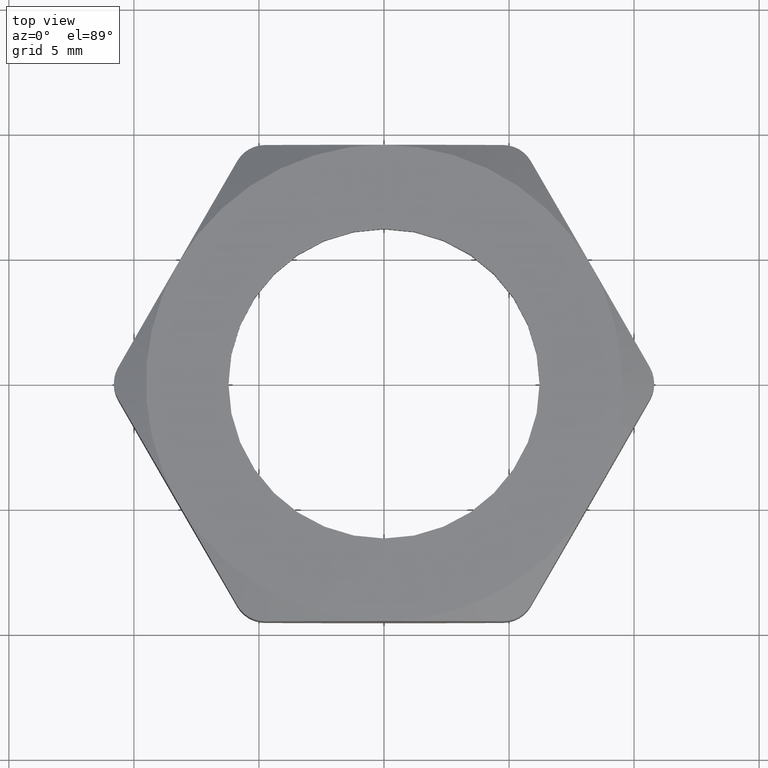
[diagram: clean part render]
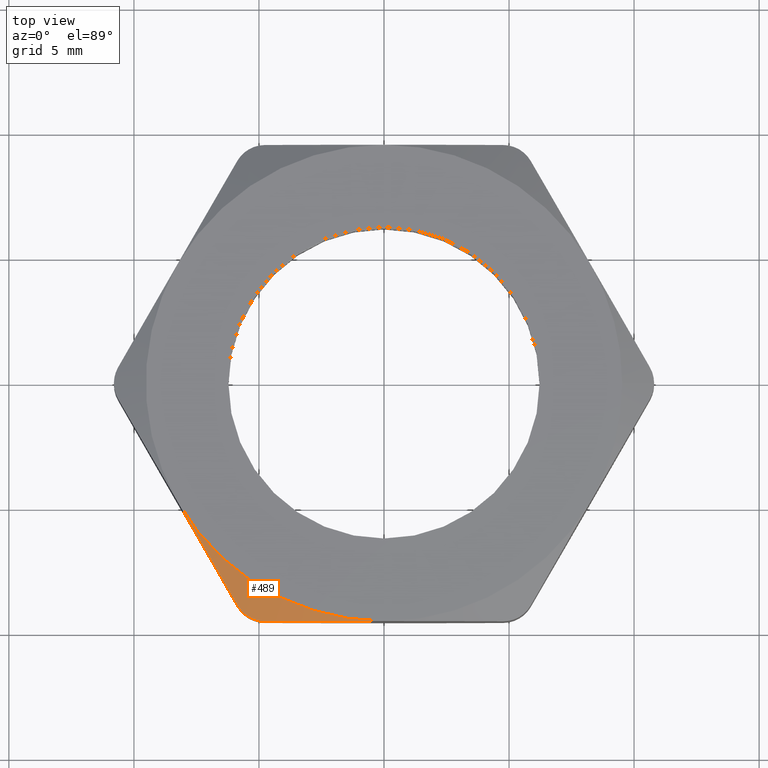
[diagram: same view with one face highlighted and labeled with its STEP entity id]
A machine part, top view. The second image highlights one B-rep face of the part: STEP entity #489.
In plain terms, the highlighted conical surface has half-angle 60 deg.
Its self-contained STEP definition (entity closure, byte-faithful):
#489 = ADVANCED_FACE ( 'NONE', ( #1753 ), #1752, .T. ) ;
#490 = EDGE_LOOP ( 'NONE', ( #523, #524, #526, #527 ) ) ;
#523 = ORIENTED_EDGE ( 'NONE', *, *, #568, .T. ) ;
#524 = ORIENTED_EDGE ( 'NONE', *, *, #525, .T. ) ;
#525 = EDGE_CURVE ( 'NONE', #584, #557, #1792, .T. ) ;
#526 = ORIENTED_EDGE ( 'NONE', *, *, #556, .T. ) ;
#527 = ORIENTED_EDGE ( 'NONE', *, *, #546, .F. ) ;
#546 = EDGE_CURVE ( 'NONE', #585, #561, #1863, .T. ) ;
#556 = EDGE_CURVE ( 'NONE', #557, #561, #1896, .T. ) ;
#557 = VERTEX_POINT ( 'NONE', #1895 ) ;
#561 = VERTEX_POINT ( 'NONE', #1886 ) ;
#568 = EDGE_CURVE ( 'NONE', #585, #584, #1923, .T. ) ;
#584 = VERTEX_POINT ( 'NONE', #1929 ) ;
#585 = VERTEX_POINT ( 'NONE', #1928 ) ;
#1310 = CARTESIAN_POINT ( 'NONE',  ( -0.2287868189352707500, -0.3537296055020498500, 0.1732964214377347200 ) ) ;
#1528 = CARTESIAN_POINT ( 'NONE',  ( -0.2261771511668514700, -0.3571555960096042300, 0.1724448371212607400 ) ) ;
#1553 = CARTESIAN_POINT ( 'NONE',  ( -0.2164802531927082500, -0.3660790922801531200, 0.1709740837146793100 ) ) ;
#1554 = CARTESIAN_POINT ( 'NONE',  ( -0.2199995032653191700, -0.3633662779848138600, 0.1712740274009819700 ) ) ;
#1555 = CARTESIAN_POINT ( 'NONE',  ( -0.1963125445148797300, -0.3744339278849128600, 0.1724288769662067600 ) ) ;
#1556 = CARTESIAN_POINT ( 'NONE',  ( -0.2088710267960136600, -0.3704809104968519500, 0.1709702763353529700 ) ) ;
#1557 = CARTESIAN_POINT ( 'NONE',  ( -0.2047242654336723400, -0.3721914671482999300, 0.1712713809660511300 ) ) ;
#1558 = CARTESIAN_POINT ( 'NONE',  ( -0.1876388374865758400, -0.3749999999999996700, 0.1744090335072245600 ) ) ;
#1559 = CARTESIAN_POINT ( 'NONE',  ( -0.1919466985765596300, -0.3750000000000022800, 0.1732960898150893400 ) ) ;
#1736 = DIRECTION ( 'NONE',  ( 1.000000000000000000, 0.0000000000000000000, 0.0000000000000000000 ) ) ;
#1737 = DIRECTION ( 'NONE',  ( 0.0000000000000000000, 0.0000000000000000000, -1.000000000000000000 ) ) ;
#1749 = AXIS2_PLACEMENT_3D ( 'NONE', #1750, #1737, #1736 ) ;
#1750 = CARTESIAN_POINT ( 'NONE',  ( 0.0000000000000000000, 0.0000000000000000000, 0.2000000000000000100 ) ) ;
#1752 = CONICAL_SURFACE ( 'NONE', #1749, 0.3749999999999999400, 1.047197551196600100 ) ;
#1753 = FACE_OUTER_BOUND ( 'NONE', #490, .T. ) ;
#1788 = CARTESIAN_POINT ( 'NONE',  ( -0.2309401076758505800, -0.3499999999999997000, 0.1744090335072108500 ) ) ;
#1792 = B_SPLINE_CURVE_WITH_KNOTS ( 'NONE', 3,
 ( #1788, #1310, #1528, #1554, #1553, #1556, #1557, #1555, #1559, #1558 ),
 .UNSPECIFIED., .F., .F.,
 ( 4, 2, 2, 2, 4 ),
 ( 0.0000000000000000000, 0.0003344051723307278900, 0.0006688103446614557800, 0.001003215516992183700, 0.001337620689322911600 ),
 .UNSPECIFIED. ) ;
#1859 = DIRECTION ( 'NONE',  ( 1.000000000000000000, 0.0000000000000000000, 0.0000000000000000000 ) ) ;
#1860 = DIRECTION ( 'NONE',  ( 0.0000000000000000000, 0.0000000000000000000, 1.000000000000000000 ) ) ;
#1861 = CARTESIAN_POINT ( 'NONE',  ( 0.0000000000000000000, 0.0000000000000000000, 0.2000000000000000100 ) ) ;
#1862 = AXIS2_PLACEMENT_3D ( 'NONE', #1861, #1860, #1859 ) ;
#1863 = CIRCLE ( 'NONE', #1862, 0.3749999999999999400 ) ;
#1886 = CARTESIAN_POINT ( 'NONE',  ( 0.0000000000000000000, -0.3749999999999996700, 0.2000000000000000100 ) ) ;
#1887 = CARTESIAN_POINT ( 'NONE',  ( 0.0000000000000000000, -0.3749999999999996700, 0.2000000000000000100 ) ) ;
#1888 = CARTESIAN_POINT ( 'NONE',  ( -0.03164395997495458200, -0.3749999999999997800, 0.2000000000000002300 ) ) ;
#1889 = CARTESIAN_POINT ( 'NONE',  ( -0.06308929749123604000, -0.3749999999999998300, 0.1976566015216269800 ) ) ;
#1890 = CARTESIAN_POINT ( 'NONE',  ( -0.1099951275432414800, -0.3749999999999997800, 0.1910482817949269700 ) ) ;
#1891 = CARTESIAN_POINT ( 'NONE',  ( -0.1255872119684755300, -0.3749999999999997800, 0.1883359152561951100 ) ) ;
#1892 = CARTESIAN_POINT ( 'NONE',  ( -0.1566949507369402000, -0.3749999999999996700, 0.1820094405576402300 ) ) ;
#1893 = CARTESIAN_POINT ( 'NONE',  ( -0.1722455309494971300, -0.3749999999999996700, 0.1783859220497436800 ) ) ;
#1894 = CARTESIAN_POINT ( 'NONE',  ( -0.1876388374865758400, -0.3749999999999996700, 0.1744090335072245600 ) ) ;
#1895 = CARTESIAN_POINT ( 'NONE',  ( -0.1876388374865758400, -0.3749999999999996700, 0.1744090335072245600 ) ) ;
#1896 = B_SPLINE_CURVE_WITH_KNOTS ( 'NONE', 3,
 ( #1894, #1893, #1892, #1891, #1890, #1889, #1888, #1887 ),
 .UNSPECIFIED., .F., .F.,
 ( 4, 2, 2, 4 ),
 ( 0.01082889828214100500, 0.01203140419073077000, 0.01323391009932053400, 0.01563892191650006300 ),
 .UNSPECIFIED. ) ;
#1914 = CARTESIAN_POINT ( 'NONE',  ( -0.2309401076758505800, -0.3499999999999997000, 0.1744090335072108500 ) ) ;
#1915 = CARTESIAN_POINT ( 'NONE',  ( -0.2462782553154250200, -0.3234335489942638500, 0.1823343097906882400 ) ) ;
#1916 = CARTESIAN_POINT ( 'NONE',  ( -0.2617398379950048900, -0.2966533022278047300, 0.1887692090713127000 ) ) ;
#1917 = CARTESIAN_POINT ( 'NONE',  ( -0.2851822622156476900, -0.2560498324250682900, 0.1954024066271251300 ) ) ;
#1918 = CARTESIAN_POINT ( 'NONE',  ( -0.2930380967724341400, -0.2424431278368587800, 0.1971100618446669000 ) ) ;
#1919 = CARTESIAN_POINT ( 'NONE',  ( -0.3088421535193918700, -0.2150696985854262700, 0.1994098672810170900 ) ) ;
#1920 = CARTESIAN_POINT ( 'NONE',  ( -0.3168206163786562700, -0.2012505955468787400, 0.2000000000000001800 ) ) ;
#1921 = CARTESIAN_POINT ( 'NONE',  ( -0.3247595264191646100, -0.1874999999999999400, 0.2000000000000000100 ) ) ;
#1923 = B_SPLINE_CURVE_WITH_KNOTS ( 'NONE', 3,
 ( #1921, #1920, #1919, #1918, #1917, #1916, #1915, #1914 ),
 .UNSPECIFIED., .F., .F.,
 ( 4, 2, 2, 4 ),
 ( 0.005564589980275968900, 0.006762186791010953700, 0.007959783601745937600, 0.01035497722321590500 ),
 .UNSPECIFIED. ) ;
#1928 = CARTESIAN_POINT ( 'NONE',  ( -0.3247595264191646100, -0.1874999999999999400, 0.2000000000000000100 ) ) ;
#1929 = CARTESIAN_POINT ( 'NONE',  ( -0.2309401076758505800, -0.3499999999999997000, 0.1744090335072108500 ) ) ;